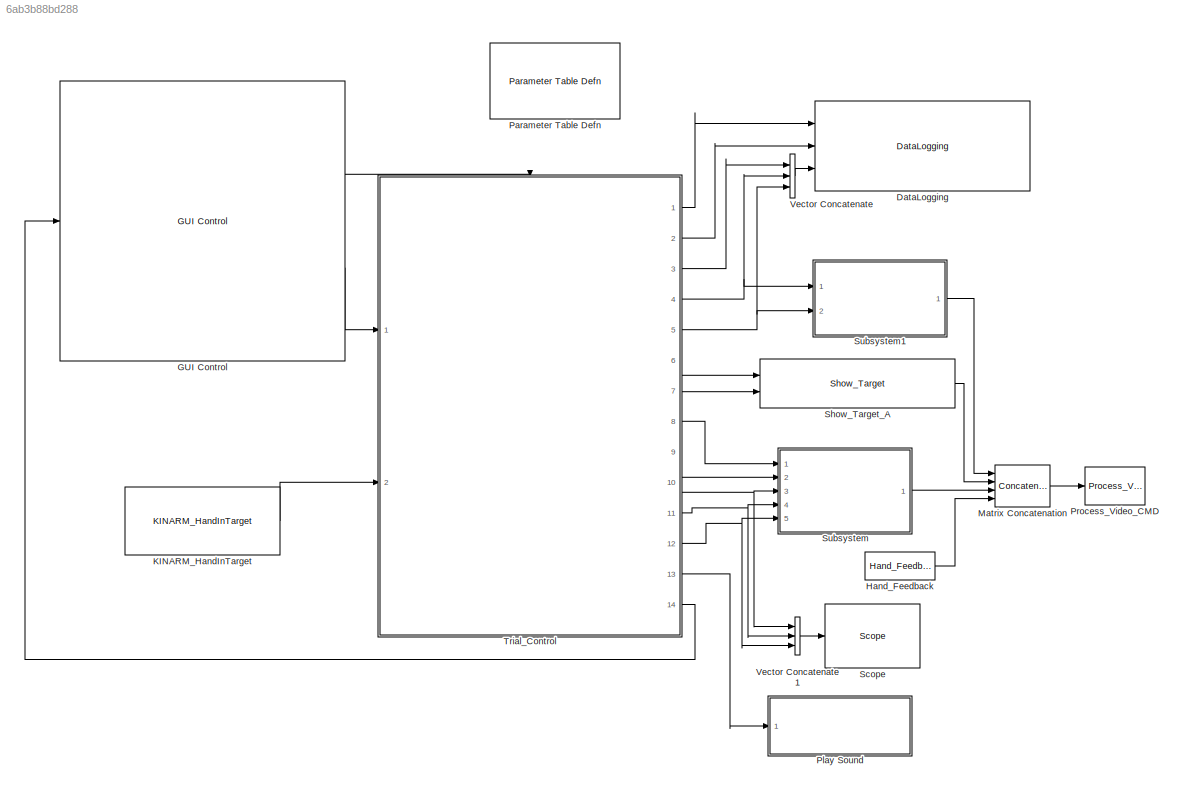
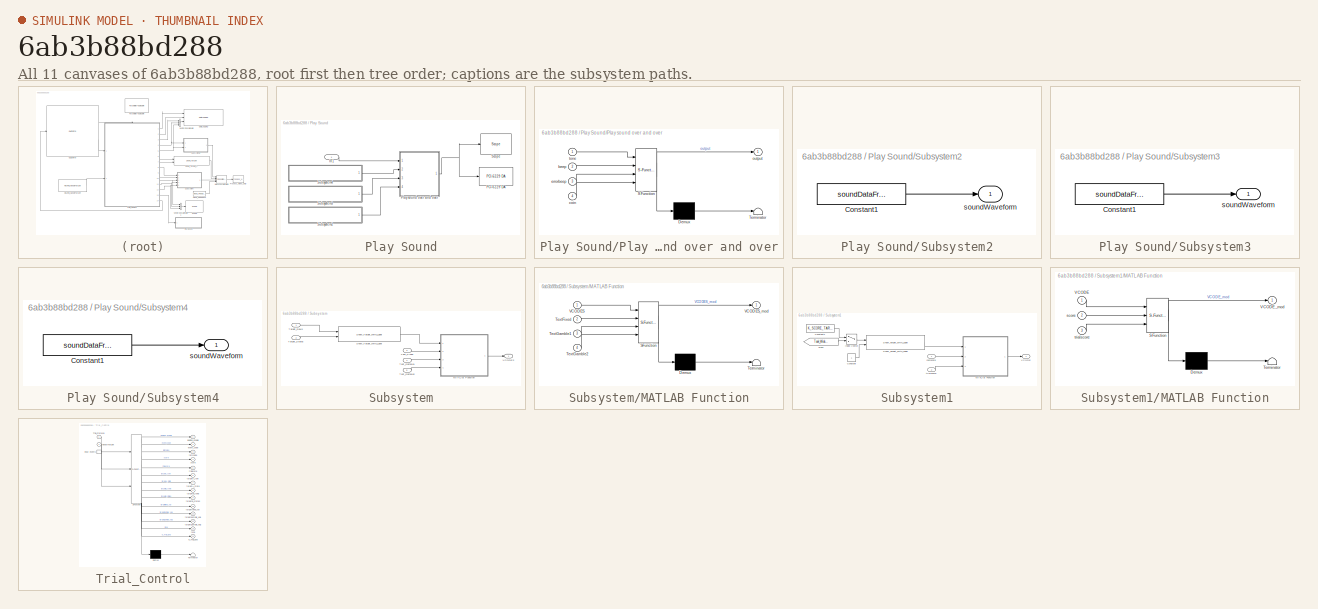
[diagram: thumbnail index - all 11 canvases of the model, root first then tree order]
MODEL slx_6ab3b88bd288
KIND model
CONFIG AbsTol = auto
CONFIG FixedStep = BKIN_STEP_TIME
CONFIG MaxStep = auto
CONFIG MinStep = auto
CONFIG RelTol = 1e-3
CONFIG SampleTimeConstraint = Unconstrained
CONFIG Solver = ode4
CONFIG SolverMode = MultiTasking
CONFIG SolverName = ode4
CONFIG StartFcn =  warndlg('Dexterit-E models cannot run under simulation. Please compile your model and run it from within Dexterit-E.');set_param(bdroot,'SimulationCommand','stop')
CONFIG StartTime = 0.0
CONFIG StopTime = inf
WORKSPACE source: MAT-file member
WORKSPACE BKIN_STEP_TIME = 0.00025
WORKSPACE col_x = 1
WORKSPACE INIT_COLOR = 5
BLOCK [Reference] DataLogging  REF=General/DataLogging
  Ports = [3]
  SourceBlock = General/DataLogging
  SourceType = DataLogging
  ecat_include = on
  log_analog_inputs = on
  log_event_codes = on
  show_time_remaining = off
BLOCK [Reference] GUI Control  REF=General/GUI Control
  Lcols = 4
  Ports = [1, 2]
  SourceBlock = General/GUI Control
  SourceType = GUI Control
  Target_Type = 1
  Vcols = 3
  XYcols = [1 2]
  indices_padding = [0 0 0 0;0 0 0 0]
  load_table_rows = 20
  show_repeat_trial_flag = off
  target_table_rows = 64
  target_type_str = Circle
  task_version = 1.0
  tp_table_rows = 100
  use_custom_tp = off
BLOCK [Reference] Hand_Feedback  REF=KINARM_general/Hand_Feedback
  Ports = [0, 1]
  SourceBlock = KINARM_general/Hand_Feedback
  SourceType = Hand_Feedback
  feedback_cntl_src = none
BLOCK [Reference] KINARM_HandInTarget  REF=KINARM_general/KINARM_HandInTarget
  Ports = [0, 1]
  SourceBlock = KINARM_general/KINARM_HandInTarget
  SourceType = KINARM_HandInTarget
  attribcol1 = [VWIDTH VHEIGHT 0]
  attribcol2 = [0 0 0]
  attribcol3 = [0 0 0]
  attribcol4 = [0 0 0]
  attribcol5 = [0 0 0]
  num_states = 1
  target_type = Rectangle
  use_dominant_hand = on
BLOCK [Concatenate] Matrix Concatenation
  Mode = Multidimensional array
  NumInputs = 4
  Ports = [4, 1]
BLOCK [Reference] Parameter Table Defn  REF=General/Parameter Table Defn
  Ports = []
  ShowInLibBrowser = 0
  SourceBlock = General/Parameter Table Defn
  UserDataPersistent = on
BLOCK [SubSystem] Play Sound
  Ports = [1]
  RequestExecContextInheritance = off
BLOCK [Inport] Play Sound/In1
  IconDisplay = Signal name
BLOCK [Reference] Play Sound/PCI-6229 DA  REF=xpcnilib/D//A/M Series/PCI-6229 DA
  Ports = [1]
  SourceBlock = xpcnilib/D//A/M Series/PCI-6229 DA
  SourceType = danipci6229
  channel = [1]
  initValue = [0]
  reset = [1]
  sampletime = -1
  slot = -1
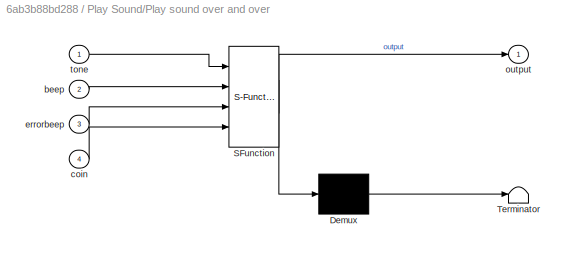
BLOCK [SubSystem] Play Sound/Play sound over and over
  ErrorFcn = Stateflow.Translate.translate
  PermitHierarchicalResolution = ExplicitOnly
  Ports = [4, 1]
  RequestExecContextInheritance = off
  SFBlockType = MATLAB Function
  TreatAsAtomicUnit = on
BLOCK [Demux] Play Sound/Play sound over and over/ Demux 
  Outputs = 1
  Ports = [1, 1]
BLOCK [S-Function] Play Sound/Play sound over and over/ SFunction 
  EnableBusSupport = on
  FunctionName = sf_sfun
  PortCounts = [4 2]
  Ports = [4, 2]
  Tag = Stateflow S-Function CML_Utility_Test 4
BLOCK [Terminator] Play Sound/Play sound over and over/ Terminator 
BLOCK [Inport] Play Sound/Play sound over and over/beep
  IconDisplay = Port number
  Port = 2
BLOCK [Inport] Play Sound/Play sound over and over/coin
  IconDisplay = Port number
  Port = 4
BLOCK [Inport] Play Sound/Play sound over and over/errorbeep
  IconDisplay = Port number
  Port = 3
BLOCK [Outport] Play Sound/Play sound over and over/output
  IconDisplay = Port number
BLOCK [Inport] Play Sound/Play sound over and over/tone
  IconDisplay = Port number
BLOCK [Reference] Play Sound/Scope   REF=slrtlib/Displays and
Logging/Scope 
  Ports = [1]
  SourceBlock = slrtlib/Displays and\nLogging/Scope
  SourceType = xpcscopeblock
  autorestart = off
  autostart = on
  dynamicfilemode = off
  filename = data.dat
  formatstr = '%15.6f'
  grid = on
  interleave = 1
  maxwritefilesize = 512*1024^2
  mode = Lazy
  noprepostsamples = 0
  nosamples = 4000
  scopeno = 1
  scopetype = Target
  triggerlevel = 0.0
  triggermode = FreeRun
  triggersample = 0
  triggerscope = 1
  triggersignal = 1
  triggerslope = Either
  trigsignalfromport = off
  viewmode = Graphical redraw
  writesize = 512
  ylimits = [0,0]
BLOCK [SubSystem] Play Sound/Subsystem2
  Ports = [0, 1]
  RequestExecContextInheritance = off
BLOCK [Constant] Play Sound/Subsystem2/Constant1
  Value = soundDataFromFile
BLOCK [Outport] Play Sound/Subsystem2/soundWaveform
  IconDisplay = Port number
BLOCK [SubSystem] Play Sound/Subsystem3
  Ports = [0, 1]
  RequestExecContextInheritance = off
BLOCK [Constant] Play Sound/Subsystem3/Constant1
  Value = soundDataFromFile
BLOCK [Outport] Play Sound/Subsystem3/soundWaveform
  IconDisplay = Port number
BLOCK [SubSystem] Play Sound/Subsystem4
  Ports = [0, 1]
  RequestExecContextInheritance = off
BLOCK [Constant] Play Sound/Subsystem4/Constant1
  Value = soundDataFromFile
BLOCK [Outport] Play Sound/Subsystem4/soundWaveform
  IconDisplay = Port number
BLOCK [Reference] Process_Video_CMD  REF=Video/Process_Video_CMD
  Ports = [1]
  SourceBlock = Video/Process_Video_CMD
  SourceType = Process_Video_CMD
  video_delay = 0
BLOCK [Reference] Scope   REF=slrtlib/Displays and
Logging/Scope 
  Ports = [1]
  SourceBlock = slrtlib/Displays and\nLogging/Scope
  SourceType = xpcscopeblock
  autorestart = off
  autostart = on
  dynamicfilemode = off
  filename = data.dat
  formatstr = '%15.6f'
  grid = on
  interleave = 1
  maxwritefilesize = 512*1024^2
  mode = Lazy
  noprepostsamples = 0
  nosamples = 4000
  scopeno = 2
  scopetype = Target
  triggerlevel = 0.0
  triggermode = FreeRun
  triggersample = 0
  triggerscope = 1
  triggersignal = 1
  triggerslope = Either
  trigsignalfromport = off
  viewmode = Numerical
  writesize = 512
  ylimits = [0,0]
BLOCK [Reference] Show_Target_A  REF=Video/Show_Target
  Ports = [2, 1]
  SourceBlock = Video/Show_Target
  SourceType = Show_Target
  attribcol1 = [INIT_COLOR 0 0 VWIDTH]
  attribcol2 = [0 0 0 0]
  attribcol3 = [0 0 0 0]
  attribcol4 = [0 0 0 0]
  attribcol5 = [0 0 0 0]
  num_col = 4
  num_states = 1
  opacity = 100
  source = dialog
  stateindices_padding = [0 0 0 0 0 0 0;0 0 0 0 0 0 0;0 0 0 0 0 0 0;0 0 0 0 0 0 0;0 0 0 0 0 0 0]
  target_display = Both subject and operator displays
  target_type = Circle
BLOCK [SubSystem] Subsystem
  Ports = [5, 1]
  RequestExecContextInheritance = off
BLOCK [SubSystem] Subsystem/MATLAB Function
  ErrorFcn = Stateflow.Translate.translate
  PermitHierarchicalResolution = ExplicitOnly
  Ports = [4, 1]
  RequestExecContextInheritance = off
  SFBlockType = MATLAB Function
  TreatAsAtomicUnit = on
BLOCK [Demux] Subsystem/MATLAB Function/ Demux 
  Outputs = 1
  Ports = [1, 1]
BLOCK [S-Function] Subsystem/MATLAB Function/ SFunction 
  EnableBusSupport = on
  FunctionName = sf_sfun
  PortCounts = [4 2]
  Ports = [4, 2]
  Tag = Stateflow S-Function CML_Utility_Test 2
BLOCK [Terminator] Subsystem/MATLAB Function/ Terminator 
BLOCK [Inport] Subsystem/MATLAB Function/TextFixed
  IconDisplay = Port number
  Port = 2
BLOCK [Inport] Subsystem/MATLAB Function/TextGamble1
  IconDisplay = Port number
  Port = 3
BLOCK [Inport] Subsystem/MATLAB Function/TextGamble2
  IconDisplay = Port number
  Port = 4
BLOCK [Inport] Subsystem/MATLAB Function/VCODES
  IconDisplay = Port number
BLOCK [Outport] Subsystem/MATLAB Function/VCODES_mod
  IconDisplay = Port number
BLOCK [Reference] Subsystem/Show_Target_With_Label  REF=Video/Show_Target_With_Label
  Ports = [2, 1]
  SourceBlock = Video/Show_Target_With_Label
  SourceType = Show_Target_With_Label
  attribcol1 = [0 INIT_COLOR STROKE VWIDTH VHEIGHT 0 TEXT TEXT_COLOR TEXT_HEIGHT]
  attribcol2 = [CHOICE_COLOR INIT_COLOR STROKE VWIDTH VHEIGHT 0 TEXT TEXT_COLOR TEXT_HEIGHT]
  attribcol3 = [0 0 0 0 0 0 0 0 0]
  attribcol4 = [0 0 0 0 0 0 0 0 0]
  attribcol5 = [0 0 0 0 0 0 0 0 0]
  num_states = 2
  opacity = 100
  source = dialog
  stateindices_padding = [0 0;0 0;0 0;0 0;0 0]
  target_display = Both subject and operator displays
  target_type = Rectangle
BLOCK [Inport] Subsystem/Target_Rows
  IconDisplay = Port number
BLOCK [Inport] Subsystem/Target_States
  IconDisplay = Port number
  Port = 2
BLOCK [Inport] Subsystem/Text_Fixed
  IconDisplay = Port number
  Port = 3
BLOCK [Inport] Subsystem/Text_Gamble1
  IconDisplay = Port number
  Port = 4
BLOCK [Inport] Subsystem/Text_Gamble2
  IconDisplay = Port number
  Port = 5
BLOCK [Outport] Subsystem/VCODES
  IconDisplay = Port number
BLOCK [SubSystem] Subsystem1
  Ports = [2, 1]
  RequestExecContextInheritance = off
BLOCK [Constant] Subsystem1/Constant
BLOCK [Constant] Subsystem1/Constant1
  Value = K_SCORE_TARGET
BLOCK [From] Subsystem1/From
  GotoTag = Task_Wide_Parameters
  TagVisibility = global
BLOCK [MultiPortSwitch] Subsystem1/Index Vector
  InputSameDT = off
  Inputs = 1
  Ports = [2, 1]
  SaturateOnIntegerOverflow = off
BLOCK [SubSystem] Subsystem1/MATLAB Function
  ErrorFcn = Stateflow.Translate.translate
  PermitHierarchicalResolution = ExplicitOnly
  Ports = [3, 1]
  RequestExecContextInheritance = off
  SFBlockType = MATLAB Function
  TreatAsAtomicUnit = on
BLOCK [Demux] Subsystem1/MATLAB Function/ Demux 
  Outputs = 1
  Ports = [1, 1]
BLOCK [S-Function] Subsystem1/MATLAB Function/ SFunction 
  EnableBusSupport = on
  FunctionName = sf_sfun
  PortCounts = [3 2]
  Ports = [3, 2]
  Tag = Stateflow S-Function CML_Utility_Test 3
BLOCK [Terminator] Subsystem1/MATLAB Function/ Terminator 
BLOCK [Inport] Subsystem1/MATLAB Function/VCODE
  IconDisplay = Port number
BLOCK [Outport] Subsystem1/MATLAB Function/VCODE_mod
  IconDisplay = Port number
BLOCK [Inport] Subsystem1/MATLAB Function/score
  IconDisplay = Port number
  Port = 2
BLOCK [Inport] Subsystem1/MATLAB Function/trialscore
  IconDisplay = Port number
  Port = 3
BLOCK [Reference] Subsystem1/Show_Target_With_Label  REF=Video/Show_Target_With_Label
  Ports = [2, 1]
  SourceBlock = Video/Show_Target_With_Label
  SourceType = Show_Target_With_Label
  attribcol1 = [0 0 0 VWIDTH TEXT_HEIGHT 0 TEXT TEXT_COLOR TEXT_HEIGHT]
  attribcol2 = [0 0 0 0 0 0 0 0 0]
  attribcol3 = [0 0 0 0 0 0 0 0 0]
  attribcol4 = [0 0 0 0 0 0 0 0 0]
  attribcol5 = [0 0 0 0 0 0 0 0 0]
  num_states = 1
  opacity = 100
  source = dialog
  stateindices_padding = [0 0;0 0;0 0;0 0;0 0]
  target_display = Both subject and operator displays
  target_type = Rectangle
BLOCK [Outport] Subsystem1/VCODE
  IconDisplay = Port number
BLOCK [Inport] Subsystem1/cumscore
  IconDisplay = Port number
BLOCK [Inport] Subsystem1/trialscore
  IconDisplay = Port number
  Port = 2
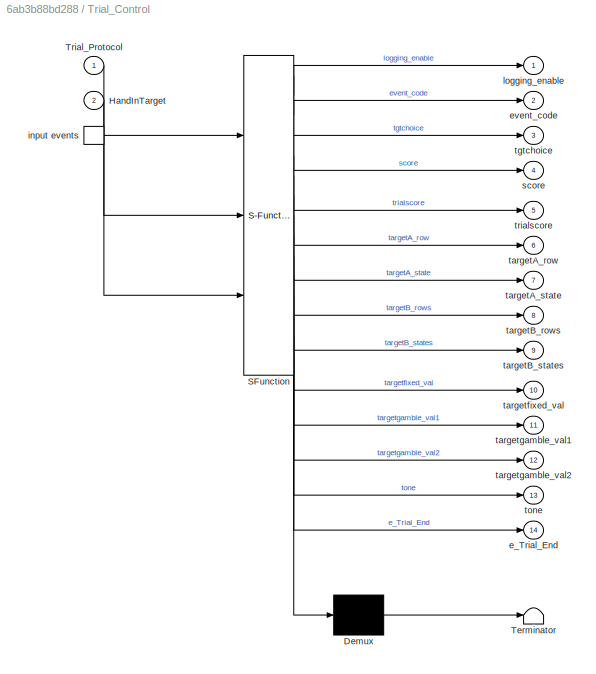
BLOCK [SubSystem] Trial_Control
  ErrorFcn = Stateflow.Translate.translate
  PermitHierarchicalResolution = ExplicitOnly
  Ports = [2, 14, 0, 1]
  RequestExecContextInheritance = off
  SFBlockType = Chart
  TreatAsAtomicUnit = on
BLOCK [Demux] Trial_Control/ Demux 
  Outputs = 1
  Ports = [1, 1]
BLOCK [S-Function] Trial_Control/ SFunction 
  EnableBusSupport = on
  FunctionName = sf_sfun
  PortCounts = [3 15]
  Ports = [3, 15]
  Tag = Stateflow S-Function CML_Utility_Test 1
BLOCK [Terminator] Trial_Control/ Terminator 
BLOCK [TriggerPort] Trial_Control/ input events 
  Ports = [0, 1]
  ShowOutputPort = on
  TriggerType = either
BLOCK [Inport] Trial_Control/HandInTarget
  IconDisplay = Port number
  Port = 2
BLOCK [Inport] Trial_Control/Trial_Protocol
  IconDisplay = Port number
BLOCK [Outport] Trial_Control/e_Trial_End
  IconDisplay = Port number
  Port = 14
BLOCK [Outport] Trial_Control/event_code
  IconDisplay = Port number
  Port = 2
BLOCK [Outport] Trial_Control/logging_enable
  IconDisplay = Port number
BLOCK [Outport] Trial_Control/score
  IconDisplay = Port number
  Port = 4
BLOCK [Outport] Trial_Control/targetA_row
  IconDisplay = Port number
  Port = 6
BLOCK [Outport] Trial_Control/targetA_state
  IconDisplay = Port number
  Port = 7
BLOCK [Outport] Trial_Control/targetB_rows
  IconDisplay = Port number
  Port = 8
BLOCK [Outport] Trial_Control/targetB_states
  IconDisplay = Port number
  Port = 9
BLOCK [Outport] Trial_Control/targetfixed_val
  IconDisplay = Port number
  Port = 10
BLOCK [Outport] Trial_Control/targetgamble_val1
  IconDisplay = Port number
  Port = 11
BLOCK [Outport] Trial_Control/targetgamble_val2
  IconDisplay = Port number
  Port = 12
BLOCK [Outport] Trial_Control/tgtchoice
  IconDisplay = Port number
  Port = 3
BLOCK [Outport] Trial_Control/tone
  IconDisplay = Port number
  Port = 13
BLOCK [Outport] Trial_Control/trialscore
  IconDisplay = Port number
  Port = 5
BLOCK [Concatenate] Vector Concatenate
  NumInputs = 3
  Ports = [3, 1]
BLOCK [Concatenate] Vector Concatenate1
  NumInputs = 3
  Ports = [3, 1]
LINE GUI Control:1 -> Trial_Control:trigger
LINE GUI Control:2 -> Trial_Control:1
LINE Hand_Feedback:1 -> Matrix Concatenation:4
LINE KINARM_HandInTarget:1 -> Trial_Control:2
LINE Matrix Concatenation:1 -> Process_Video_CMD:1
LINE Play Sound/In1:1 -> Play Sound/Play sound over and over:1
NET Play Sound/Play sound over and over:1 -> Play Sound/PCI-6229 DA:1, Play Sound/Scope :1
LINE Play Sound/Subsystem2/Constant1:1 -> Play Sound/Subsystem2/soundWaveform:1
LINE Play Sound/Subsystem2:1 -> Play Sound/Play sound over and over:4
LINE Play Sound/Subsystem3/Constant1:1 -> Play Sound/Subsystem3/soundWaveform:1
LINE Play Sound/Subsystem3:1 -> Play Sound/Play sound over and over:3
LINE Play Sound/Subsystem4/Constant1:1 -> Play Sound/Subsystem4/soundWaveform:1
LINE Play Sound/Subsystem4:1 -> Play Sound/Play sound over and over:2
LINE Show_Target_A:1 -> Matrix Concatenation:2
LINE Subsystem/MATLAB Function:1 -> Subsystem/VCODES:1
LINE Subsystem/Show_Target_With_Label:1 -> Subsystem/MATLAB Function:1
LINE Subsystem/Target_Rows:1 -> Subsystem/Show_Target_With_Label:1
LINE Subsystem/Target_States:1 -> Subsystem/Show_Target_With_Label:2
LINE Subsystem/Text_Fixed:1 -> Subsystem/MATLAB Function:2
LINE Subsystem/Text_Gamble1:1 -> Subsystem/MATLAB Function:3
LINE Subsystem/Text_Gamble2:1 -> Subsystem/MATLAB Function:4
LINE Subsystem1/Constant1:1 -> Subsystem1/Index Vector:1
LINE Subsystem1/Constant:1 -> Subsystem1/Show_Target_With_Label:2
LINE Subsystem1/From:1 -> Subsystem1/Index Vector:2
LINE Subsystem1/Index Vector:1 -> Subsystem1/Show_Target_With_Label:1
LINE Subsystem1/MATLAB Function:1 -> Subsystem1/VCODE:1
LINE Subsystem1/Show_Target_With_Label:1 -> Subsystem1/MATLAB Function:1
LINE Subsystem1/cumscore:1 -> Subsystem1/MATLAB Function:2
LINE Subsystem1/trialscore:1 -> Subsystem1/MATLAB Function:3
LINE Subsystem1:1 -> Matrix Concatenation:1
LINE Subsystem:1 -> Matrix Concatenation:3
LINE Trial_Control:1 -> DataLogging:1
NET Trial_Control:10 -> Subsystem:3, Vector Concatenate1:1
NET Trial_Control:11 -> Subsystem:4, Vector Concatenate1:2
NET Trial_Control:12 -> Subsystem:5, Vector Concatenate1:3
LINE Trial_Control:13 -> Play Sound:1
LINE Trial_Control:14 -> GUI Control:1
LINE Trial_Control:2 -> DataLogging:2
LINE Trial_Control:3 -> Vector Concatenate:1
NET Trial_Control:4 -> Subsystem1:1, Vector Concatenate:2
NET Trial_Control:5 -> Subsystem1:2, Vector Concatenate:3
LINE Trial_Control:6 -> Show_Target_A:1
LINE Trial_Control:7 -> Show_Target_A:2
LINE Trial_Control:8 -> Subsystem:1
LINE Trial_Control:9 -> Subsystem:2
LINE Vector Concatenate1:1 -> Scope :1
LINE Vector Concatenate:1 -> DataLogging:3
note: NET lines group one-source signal fan-out (src -> all destinations, sorted); 1:1 wires keep LINE
CHART Trial_Control states=10 transitions=15
  STATE_LABEL 'MainTrial'
  STATE_LABEL 'ShowStartTarget/\n// Turn on first target, set loading conditions, enable data logging, and wait for a specified time or until the hand is in the target.\ntargetA_row = Trial_Protocol[START_TARGET];\ntargetA_state = 1;\ntgtchoice = 0;\ntrialscore = 0;'
  STATE_LABEL "HoldStartTarget/\n// Log an event that target was reached, begin data logging, change the first target's state, and then wait for a specified time.\n// The wait time may have both a fixed and a random component. The hand must stay in the target for the full wait time.\nevent_code = E_STAY_CENTER;\ntickCount = Trial_Protocol[DELAY_TARGET_FIXED] + Trial_Protocol[DELAY_TARGET_RANDOM] * rand() / RAND_MAX;...<+32ch>"
  STATE_LABEL 'ShowChoiceTargets/\n// Turn on second target and log an event indicating this has occurred. Then wait until the hand is the target or until a specified time has elapsed.\nevent_code = E_CHOICES_ON;\ntargetB_rows[1] = Trial_Protocol[FIXED_TARGET];\ntargetB_rows[2] = Trial_Protocol[GAMBLE_TARGET];\ntargetB_states[1] = 1;\ntargetB_states[2] = 1;\n\ntargetfixed_val = Trial_Protocol[FIXED_TARGET_VAL];\ntargetga...<+176ch>'
  STATE_LABEL 'LeftStartTarget/\ntargetA_state = 0; //turn off target when hand leaves\n\nduring:\ntick++;'
  STATE_LABEL 'StayAtFixedTarget/\n// Fixed target was chosen\nevent_code = E_HOLD_AT_FIXED_TARGET;\ntargetB_states[1] = 2;\ntickCount = Trial_Protocol[TARGET_HOLD_TIME];\ntgtchoice = 1;\n\ntrialscore = targetfixed_val;\nscore += trialscore;\n\ntone = 2;'
  STATE_LABEL 'StayAtGambleTarget/\n// Fixed target was chosen\nevent_code = E_HOLD_AT_GAMBLE_TARGET;\ntargetB_states[2] = 2;\ntickCount = Trial_Protocol[TARGET_HOLD_TIME];\ntgtchoice = 2;\n\ntmprand = (rand() / RAND_MAX);\ntrialscore = targetgamble_val1*(tmprand >= 0.5) + targetgamble_val2*(tmprand < 0.5);\nscore += trialscore;\n\ntone = 2;'
  STATE_LABEL 'EndOfTrial/\n// Set the post-trial delay.\ntickCount = Trial_Protocol[DELAY_POST_TRIAL];'
  STATE_LABEL '[HandInTarget[targetA_row] == 1]'
  STATE_LABEL '[HandInTarget[targetA_row] == 0]'
  STATE_LABEL 'after(tickCount, e_clk)'
  STATE_LABEL '[HandInTarget[targetA_row]==0]\n'
  STATE_LABEL '[tick >= tickCount]'
  STATE_LABEL '[tick >= tickCount]'
  STATE_LABEL '[HandInTarget[targetB_rows[1]]==1]'
  STATE_LABEL '[HandInTarget[targetB_rows[2]]==1]'
  STATE_LABEL 'after(tickCount, e_clk)'
  STATE_LABEL 'after(tickCount, e_clk)'
  STATE_LABEL 'ShowStartTarget/\n// Turn on first target, set loading conditions, enable data logging, and wait for a specified time or until the hand is in the target.\ntargetA_row = Trial_Protocol[START_TARGET];\ntargetA_state = 1;\ntgtchoice = 0;\ntrialscore = 0;'
  STATE_LABEL "HoldStartTarget/\n// Log an event that target was reached, begin data logging, change the first target's state, and then wait for a specified time.\n// The wait time may have both a fixed and a random component. The hand must stay in the target for the full wait time.\nevent_code = E_STAY_CENTER;\ntickCount = Trial_Protocol[DELAY_TARGET_FIXED] + Trial_Protocol[DELAY_TARGET_RANDOM] * rand() / RAND_MAX;...<+32ch>"
  STATE_LABEL 'ShowChoiceTargets/\n// Turn on second target and log an event indicating this has occurred. Then wait until the hand is the target or until a specified time has elapsed.\nevent_code = E_CHOICES_ON;\ntargetB_rows[1] = Trial_Protocol[FIXED_TARGET];\ntargetB_rows[2] = Trial_Protocol[GAMBLE_TARGET];\ntargetB_states[1] = 1;\ntargetB_states[2] = 1;\n\ntargetfixed_val = Trial_Protocol[FIXED_TARGET_VAL];\ntargetga...<+176ch>'
  STATE_LABEL 'LeftStartTarget/\ntargetA_state = 0; //turn off target when hand leaves\n\nduring:\ntick++;'
  STATE_LABEL 'StayAtFixedTarget/\n// Fixed target was chosen\nevent_code = E_HOLD_AT_FIXED_TARGET;\ntargetB_states[1] = 2;\ntickCount = Trial_Protocol[TARGET_HOLD_TIME];\ntgtchoice = 1;\n\ntrialscore = targetfixed_val;\nscore += trialscore;\n\ntone = 2;'
  STATE_LABEL 'StayAtGambleTarget/\n// Fixed target was chosen\nevent_code = E_HOLD_AT_GAMBLE_TARGET;\ntargetB_states[2] = 2;\ntickCount = Trial_Protocol[TARGET_HOLD_TIME];\ntgtchoice = 2;\n\ntmprand = (rand() / RAND_MAX);\ntrialscore = targetgamble_val1*(tmprand >= 0.5) + targetgamble_val2*(tmprand < 0.5);\nscore += trialscore;\n\ntone = 2;'
  STATE_LABEL 'EndOfTrial/\n// Set the post-trial delay.\ntickCount = Trial_Protocol[DELAY_POST_TRIAL];'
  STATE_LABEL 'Initialize/\n// Both the targets and data logging are initially off.\ntargetA_state = 0;\ntargetB_states[1] = 0;\ntargetB_states[2] = 0;\nlogging_enable = 0;\nscore = 0;\ntone = 0;'
  STATE_LABEL 'Inter_Trial_State/\n// Turn off both targets, turn off data logging, reset the\n// event code, and send the e_Trial_End Stateflow event.\nevent_code = 0;\ntargetA_state = 0;\ntargetB_states[1] = 0;\ntargetB_states[2] = 0;\nlogging_enable = 0;\ntone = 0;\ne_Trial_End;'
CHART Subsystem/MATLAB Function states=1 transitions=1
  STATE_LABEL 'eML_blk_kernel()'
  STATE_LABEL 'SCRIPT:\nfunction VCODES_mod = fcn(VCODES, TextFixed, TextGamble1, TextGamble2)\n%#codegen\n\n%we have to replace the generic text with the desired text for this trial\n%text goes into VCODE indexes 15-64 as numeric ASCII values\n\n%    CR = 13\n%    LF = 10\n% space = 32\n%     $ = 36\n%   0-9 = 48-57\n%     . = 46\n%  cent = 162  %extended ASCII/16 bit unicode; This is not available in Dex\n\n%VCODES_mod = VCO...<+3608ch>'
CHART Subsystem1/MATLAB Function states=1 transitions=1
  STATE_LABEL 'eML_blk_kernel()'
  STATE_LABEL "SCRIPT:\nfunction VCODE_mod = fcn(VCODE, score, trialscore)\n%#codegen\n\n%we have to replace the generic text with the desired text for this trial\n%text goes into VCODE indexes 15-64 as numeric ASCII values\n\n%    CR = 13\n%    LF = 10\n% space = 32\n%     $ = 36\n%   0-9 = 48-57\n%     . = 46\n%  cent = 162  %extended ASCII/16 bit unicode; Matlab recognizes it but may not work?\n\nseparatortext = '  /  ';\nse...<+3432ch>"
CHART Play Sound/Play sound over and over states=1 transitions=1
  STATE_LABEL 'eML_blk_kernel()'
  STATE_LABEL 'SCRIPT:\nfunction output = fcn(tone,beep,errorbeep,coin)\n%#codegen\n\npersistent t last_tone_state\nif isempty(t), t = 0; end\nif isempty(last_tone_state), last_tone_state = 0; end\n\ntrigger = last_tone_state ~= tone;\nif trigger > 0\n    last_tone_state = tone;\nend\n\noutput = 0;\t\t% default\nif t == 0 && trigger > 0\n\t% start the playing of the sound.\n\tt = t + 1;\nend\n\nif tone == 1\n    data = beep;\nelseif ton...<+186ch>'
